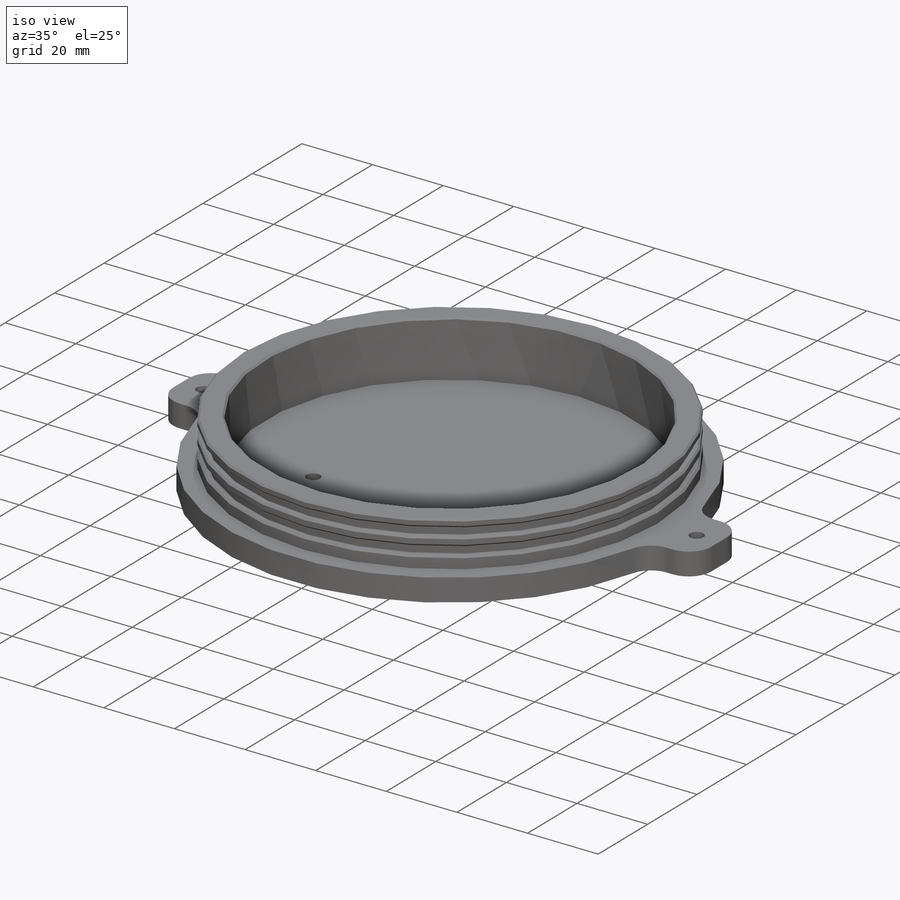
[diagram: iso view]
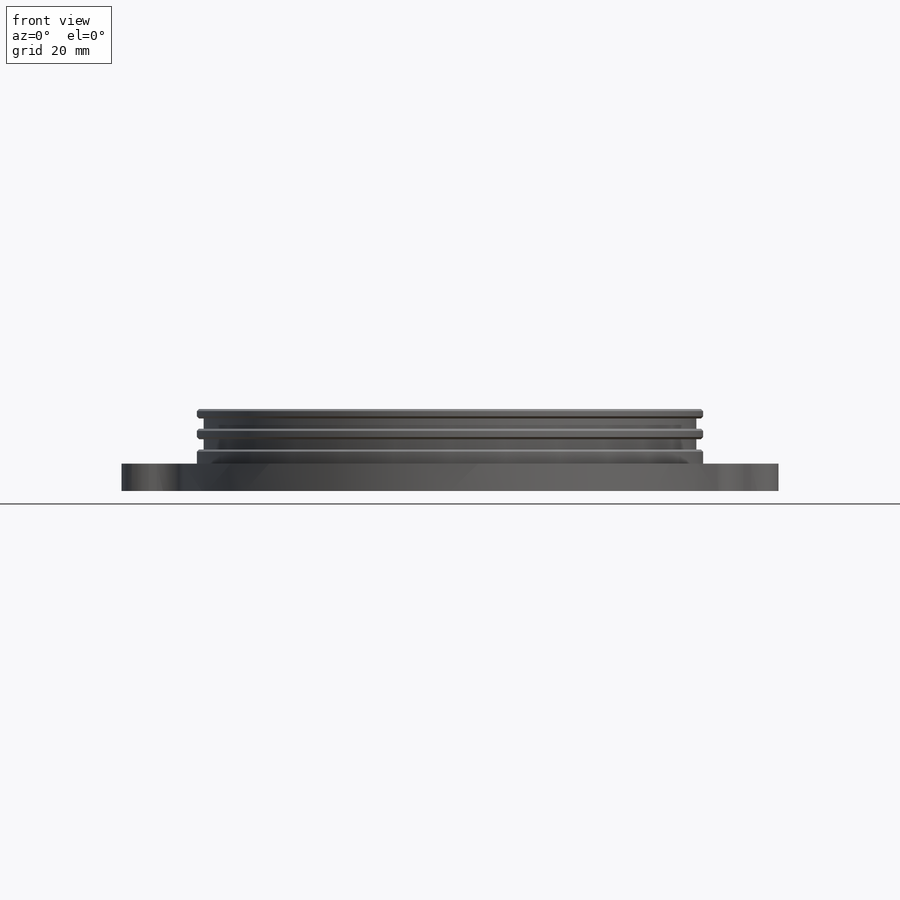
[diagram: front view]
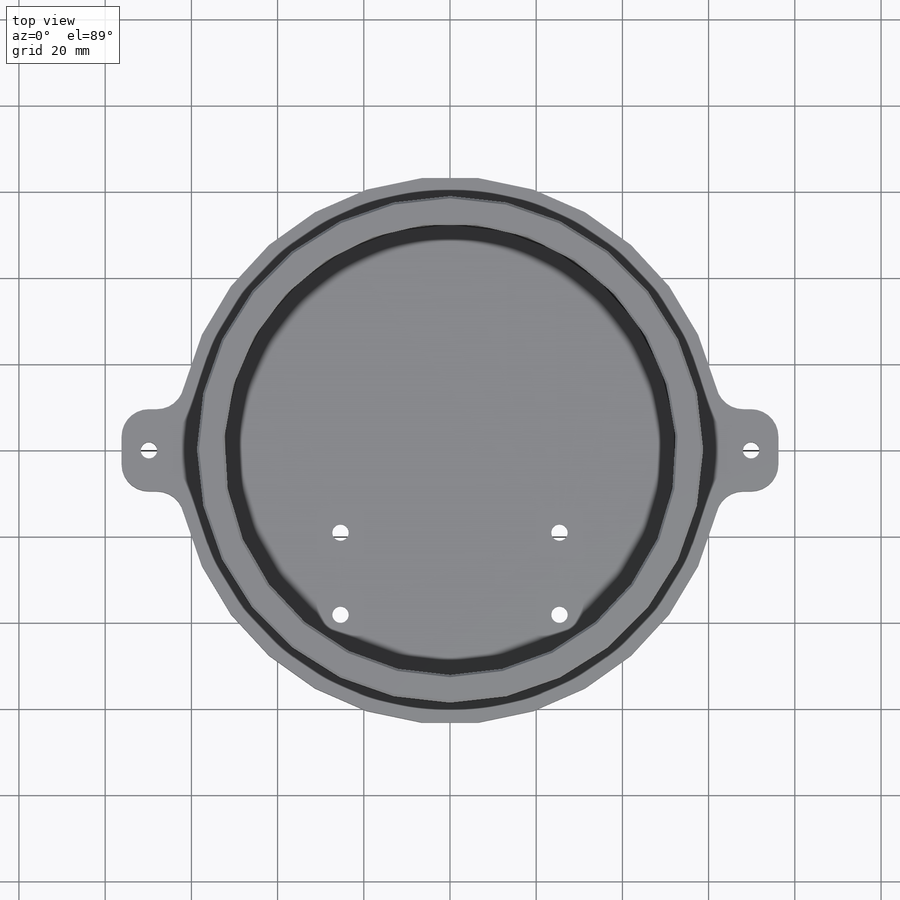
[diagram: top view]
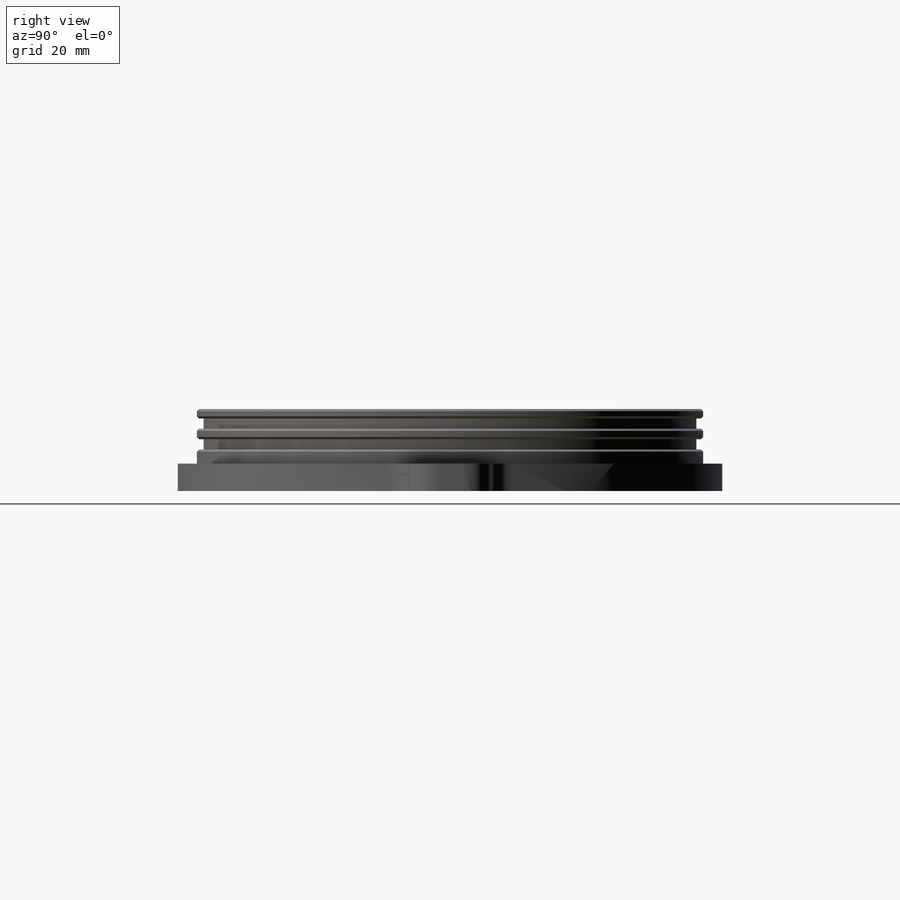
[diagram: right view]
SOLIDWORKS PART (.sldprt)
format: sldprt  version: not decoded by parser v0  size: 292,864 bytes
history: native  units: mm
features: sketch x9, extrude x3, hole x2, material x1, cut_revolve x1, chamfer x1, fillet x1, cut_extrude x1 (+11 scaffold rows collapsed)
feature tree (30):
  scaffold x11  (default folders/planes/origin — collapsed)
  material  "6061 Alloy"
  sketch  "Sketch1"  dims[D1=50.8mm]
  extrude  "Extrude1"  Depth=6.35mm
  sketch  "Sketch2"  dims[D1=~53.024287mm]
  extrude  "Extrude2"  Depth=12.7mm
  sketch  "Sketch3"  dims[D1=1.5875mm D2=~2.38125mm]
  cut_revolve  "Cut-Revolve1"  Angle=360deg
  chamfer  "Chamfer1"  Distance=0.5mm Angle=45deg
  sketch  "Sketch5"  dims[D5=6.35mm D1=152.4mm D2=76.2mm D3=19.05mm D4=9.525mm]
  extrude  "Extrude3"  [1 undecoded]
  hole  "#6 Clearance Hole1"  Diameter=3.7973mm Depth=330.2mm
  sketch  "3DSketch1"  dims[D1=9.525mm D2=9.525mm D3=6.35mm D4=6.35mm]
  sketch  "Sketch6"  dims[hole-wizard template sketch: 47 standard entries collapsed; hole parameters kept: c15.Hole Depth=330.2mm c15.D3=~14.816244mm c15.Drill Angle=118.0deg]
  fillet  "Fillet1"  Radius=6.35mm
  hole  "#6 Clearance Hole2"  Diameter=3.7973mm Depth=25.4mm
  sketch  "3DSketch2"  dims[c1.D1=19.05mm c1.D2=0.0mm c2.D2=50.8mm c2.D3=25.4mm c2.D4=19.05mm]
  sketch  "Sketch7"  dims[hole-wizard template sketch: 50 standard entries collapsed; hole parameters above]
  sketch  "Sketch8"
  cut_extrude  "Cut-Extrude1"  Depth=3.175mm
decode coverage: 16 of 18 modeling features carry decoded parameters
note: ~ marks probable driven/reference dimensions
note: 1 parameter value undecoded
note: suppression state not decoded; provenance and decode notes live in map.json
